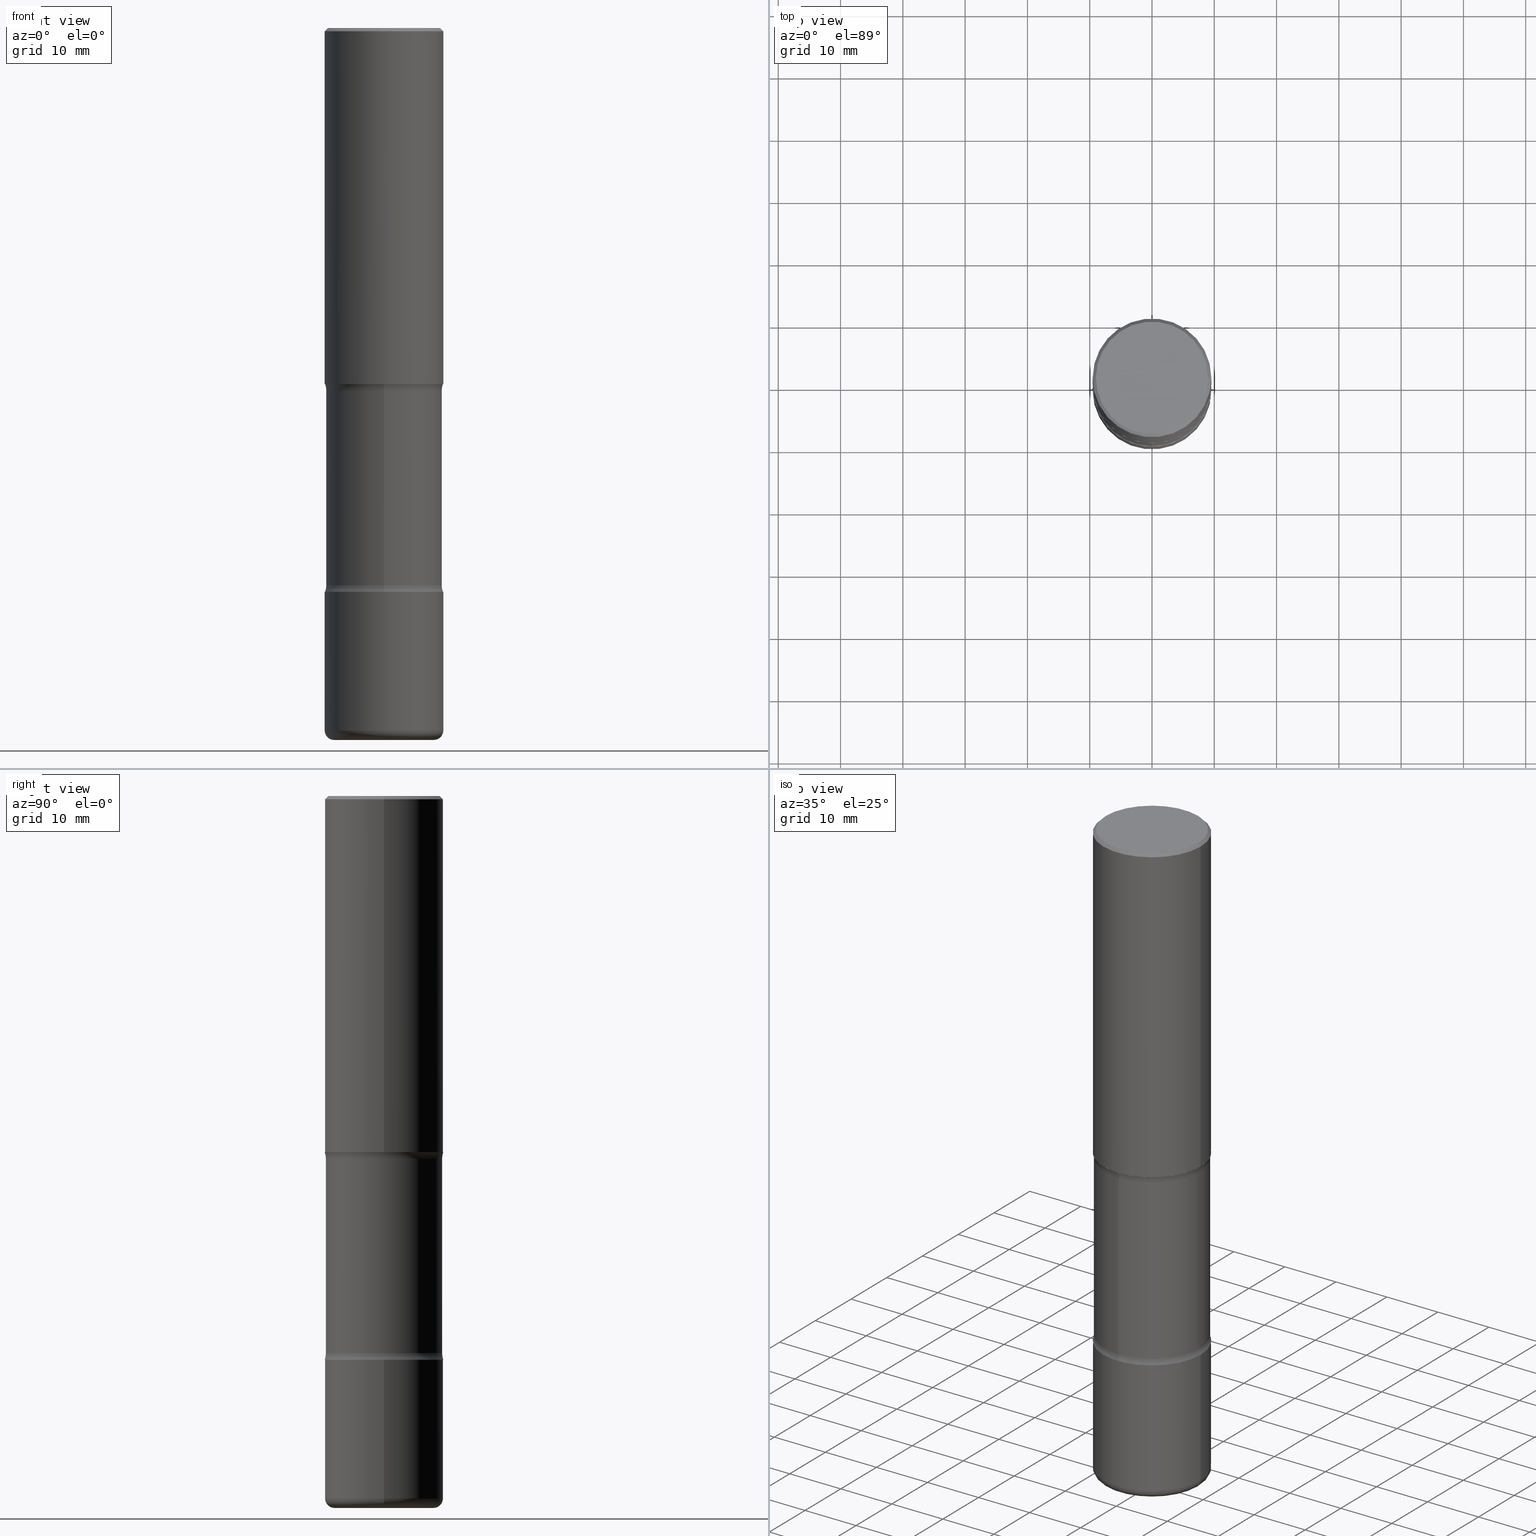
[diagram: canonical four-view strip — front | top / right | iso, engineering-drawing reading convention]
A machine part, canonical four-view strip (front | top / right | iso — engineering-drawing reading convention). The complete STEP part file that produces these views, byte-faithful:
ISO-10303-21;
HEADER;
FILE_DESCRIPTION (( 'STEP AP203' ),
    '1' );
FILE_NAME ('36792.STEP',
    '2024-03-02T00:05:12',
    ( '' ),
    ( '' ),
    'SwSTEP 2.0',
    'SolidWorks 2023',
    '' );
FILE_SCHEMA (( 'CONFIG_CONTROL_DESIGN' ));
ENDSEC;

DATA;
#1 = EDGE_CURVE ( 'NONE', #60, #247, #345, .T. ) ;
#2 = VERTEX_POINT ( 'NONE', #480 ) ;
#3 = CALENDAR_DATE ( 2024, 1, 3 ) ;
#4 = ADVANCED_FACE ( 'NONE', ( #91 ), #187, .T. ) ;
#5 = ORIENTED_EDGE ( 'NONE', *, *, #383, .F. ) ;
#6 = AXIS2_PLACEMENT_3D ( 'NONE', #176, #523, #94 ) ;
#7 = CIRCLE ( 'NONE', #175, 0.3750000000000001665 ) ;
#8 = VERTEX_POINT ( 'NONE', #444 ) ;
#9 = EDGE_LOOP ( 'NONE', ( #225, #125, #202, #95 ) ) ;
#10 = FACE_OUTER_BOUND ( 'NONE', #171, .T. ) ;
#11 = UNCERTAINTY_MEASURE_WITH_UNIT (LENGTH_MEASURE( 1.000000000000000082E-05 ), #245, 'distance_accuracy_value', 'NONE');
#12 = CC_DESIGN_PERSON_AND_ORGANIZATION_ASSIGNMENT ( #300, #256, ( #152 ) ) ;
#13 = CARTESIAN_POINT ( 'NONE',  ( 0.000000000000000000, 0.000000000000000000, 0.000000000000000000 ) ) ;
#14 = CIRCLE ( 'NONE', #44, 0.3550000000000002598 ) ;
#15 = VECTOR ( 'NONE', #178, 39.37007874015748143 ) ;
#16 = DIRECTION ( 'NONE',  ( -6.982962677686269077E-15, -1.000000000000000000, 0.000000000000000000 ) ) ;
#17 = DIRECTION ( 'NONE',  ( 1.000000000000000000, -6.982962677686265922E-15, 0.000000000000000000 ) ) ;
#18 = VECTOR ( 'NONE', #451, 39.37007874015748143 ) ;
#19 = AXIS2_PLACEMENT_3D ( 'NONE', #548, #464, #167 ) ;
#20 =( NAMED_UNIT ( * ) SI_UNIT ( $, .STERADIAN. ) SOLID_ANGLE_UNIT ( ) );
#21 = APPLICATION_PROTOCOL_DEFINITION ( 'international standard', 'config_control_design', 1994, #311 ) ;
#22 = CARTESIAN_POINT ( 'NONE',  ( -0.3550000000000002598, 2.513866563967057436E-15, 4.268512490082953109E-18 ) ) ;
#23 = DIRECTION ( 'NONE',  ( 6.982962677686265922E-15, 1.000000000000000000, -2.973439993103959853E-15 ) ) ;
#24 = VERTEX_POINT ( 'NONE', #240 ) ;
#25 = CIRCLE ( 'NONE', #110, 0.1250000000000000278 ) ;
#26 = CC_DESIGN_SECURITY_CLASSIFICATION ( #490, ( #152 ) ) ;
#27 = ORIENTED_EDGE ( 'NONE', *, *, #458, .F. ) ;
#28 = CARTESIAN_POINT ( 'NONE',  ( 5.502304813916557343E-29, -7.855833012397078448E-15, -2.250000000000000000 ) ) ;
#29 = ORIENTED_EDGE ( 'NONE', *, *, #53, .T. ) ;
#30 = CC_DESIGN_PERSON_AND_ORGANIZATION_ASSIGNMENT ( #473, #170, ( #490 ) ) ;
#31 = COORDINATED_UNIVERSAL_TIME_OFFSET ( 5, 0, .BEHIND. ) ;
#32 = ORIENTED_EDGE ( 'NONE', *, *, #212, .T. ) ;
#33 = ADVANCED_FACE ( 'NONE', ( #365 ), #493, .F. ) ;
#34 = CALENDAR_DATE ( 2024, 1, 3 ) ;
#35 = CONICAL_SURFACE ( 'NONE', #223, 0.3750000000000003886, 0.7853981633974479459 ) ;
#36 = DIRECTION ( 'NONE',  ( -1.000000000000000000, 6.982962677686265922E-15, -4.876176775795935793E-29 ) ) ;
#37 = EDGE_LOOP ( 'NONE', ( #352, #514, #32, #373 ) ) ;
#38 = APPROVAL_STATUS ( 'not_yet_approved' ) ;
#39 = EDGE_CURVE ( 'NONE', #330, #83, #505, .T. ) ;
#40 = FACE_OUTER_BOUND ( 'NONE', #112, .T. ) ;
#41 = VERTEX_POINT ( 'NONE', #185 ) ;
#42 = CARTESIAN_POINT ( 'NONE',  ( -2.572686749164238350E-15, -0.3750000000000126565, -3.562999999999999279 ) ) ;
#43 = EDGE_LOOP ( 'NONE', ( #252, #508 ) ) ;
#44 = AXIS2_PLACEMENT_3D ( 'NONE', #447, #321, #106 ) ;
#45 = FACE_OUTER_BOUND ( 'NONE', #381, .T. ) ;
#46 = EDGE_CURVE ( 'NONE', #302, #41, #448, .T. ) ;
#47 = ORIENTED_EDGE ( 'NONE', *, *, #196, .F. ) ;
#48 = DIRECTION ( 'NONE',  ( 1.000000000000000000, -6.982962677686265922E-15, 0.000000000000000000 ) ) ;
#49 = DIRECTION ( 'NONE',  ( 1.000000000000000000, -6.982962677686265922E-15, 4.883557194083113462E-29 ) ) ;
#50 = ORIENTED_EDGE ( 'NONE', *, *, #532, .F. ) ;
#51 = APPROVAL ( #387, 'UNSPECIFIED' ) ;
#52 = LINE ( 'NONE', #533, #328 ) ;
#53 = EDGE_CURVE ( 'NONE', #521, #206, #355, .T. ) ;
#54 = DIRECTION ( 'NONE',  ( 2.445468806185136597E-29, -3.491481338843145583E-15, -1.000000000000000000 ) ) ;
#55 = CLOSED_SHELL ( 'NONE', ( #220, #482, #417, #153, #432, #446 ) ) ;
#56 = DIRECTION ( 'NONE',  ( 2.496366331747755751E-29, -3.418593185330225082E-15, -1.000000000000000000 ) ) ;
#57 = CIRCLE ( 'NONE', #393, 0.3750000000000003886 ) ;
#58 = DIRECTION ( 'NONE',  ( 6.982962677686266711E-15, 1.000000000000000000, -3.642463991552346225E-15 ) ) ;
#59 = CARTESIAN_POINT ( 'NONE',  ( 1.085788149946200541E-28, -1.550217714446356700E-14, -4.440000000000000391 ) ) ;
#60 = VERTEX_POINT ( 'NONE', #412 ) ;
#61 = MANIFOLD_SOLID_BREP ( 'Body-Move/Copy2[1]', #181 ) ;
#62 = CARTESIAN_POINT ( 'NONE',  ( 8.713205356437641927E-29, -1.244014801029812826E-14, -3.563000000000000167 ) ) ;
#63 = ADVANCED_BREP_SHAPE_REPRESENTATION ( '36792', ( #61, #427, #435, #356 ), #537 ) ;
#64 = CARTESIAN_POINT ( 'NONE',  ( 5.502304813916557343E-29, -7.855833012397078448E-15, -2.250000000000000000 ) ) ;
#65 = LINE ( 'NONE', #360, #436 ) ;
#66 = FACE_OUTER_BOUND ( 'NONE', #398, .T. ) ;
#67 = CYLINDRICAL_SURFACE ( 'NONE', #269, 0.3750000000000001110 ) ;
#68 = AXIS2_PLACEMENT_3D ( 'NONE', #305, #388, #341 ) ;
#69 = CIRCLE ( 'NONE', #519, 0.3750000000000004996 ) ;
#70 = DESIGN_CONTEXT ( 'detailed design', #107, 'design' ) ;
#71 =( NAMED_UNIT ( * ) PLANE_ANGLE_UNIT ( ) SI_UNIT ( $, .RADIAN. ) );
#72 = CARTESIAN_POINT ( 'NONE',  ( 8.713205356437641927E-29, -1.244014801029812826E-14, -3.563000000000000167 ) ) ;
#73 = EDGE_CURVE ( 'NONE', #336, #247, #65, .T. ) ;
#74 = ORIENTED_EDGE ( 'NONE', *, *, #46, .T. ) ;
#75 = DIRECTION ( 'NONE',  ( 0.7071067811865472397, -7.319954787623254468E-15, -0.7071067811865477948 ) ) ;
#76 = VERTEX_POINT ( 'NONE', #172 ) ;
#77 = AXIS2_PLACEMENT_3D ( 'NONE', #486, #137, #475 ) ;
#78 = CIRCLE ( 'NONE', #136, 0.3674999999999998823 ) ;
#79 = APPLICATION_PROTOCOL_DEFINITION ( 'international standard', 'config_control_design', 1994, #107 ) ;
#80 = EDGE_CURVE ( 'NONE', #271, #521, #301, .T. ) ;
#81 = CALENDAR_DATE ( 2024, 1, 3 ) ;
#82 = COORDINATED_UNIVERSAL_TIME_OFFSET ( 5, 0, .BEHIND. ) ;
#83 = VERTEX_POINT ( 'NONE', #346 ) ;
#84 = CIRCLE ( 'NONE', #268, 0.3750000000000001665 ) ;
#85 = CC_DESIGN_DATE_AND_TIME_ASSIGNMENT ( #378, #139, ( #184 ) ) ;
#86 = AXIS2_PLACEMENT_3D ( 'NONE', #331, #285, #327 ) ;
#87 = LOCAL_TIME ( 19, 5, 12.00000000000000000, #82 ) ;
#88 = DIRECTION ( 'NONE',  ( -1.000000000000000000, 7.105427357601009747E-15, 0.000000000000000000 ) ) ;
#89 = ORIENTED_EDGE ( 'NONE', *, *, #53, .F. ) ;
#90 = FACE_OUTER_BOUND ( 'NONE', #516, .T. ) ;
#91 = FACE_OUTER_BOUND ( 'NONE', #290, .T. ) ;
#92 = PERSON_AND_ORGANIZATION ( #299, #119 ) ;
#93 = ADVANCED_FACE ( 'NONE', ( #132 ), #262, .F. ) ;
#94 = DIRECTION ( 'NONE',  ( 1.000000000000000000, -6.982962677686260400E-15, 0.000000000000000000 ) ) ;
#95 = ORIENTED_EDGE ( 'NONE', *, *, #157, .F. ) ;
#96 = AXIS2_PLACEMENT_3D ( 'NONE', #494, #401, #312 ) ;
#97 = CARTESIAN_POINT ( 'NONE',  ( 8.606743307597319638E-29, -1.229435593241547198E-14, -3.520353194726919543 ) ) ;
#98 = AXIS2_PLACEMENT_3D ( 'NONE', #495, #108, #58 ) ;
#99 = CARTESIAN_POINT ( 'NONE',  ( 2.566238784049757369E-15, 0.3674999999999917777, -2.292646805273081956 ) ) ;
#100 = CC_DESIGN_DATE_AND_TIME_ASSIGNMENT ( #557, #481, ( #490 ) ) ;
#101 = ORIENTED_EDGE ( 'NONE', *, *, #142, .T. ) ;
#102 = CARTESIAN_POINT ( 'NONE',  ( 4.890937612370306439E-31, -6.982962677686338448E-17, -0.02000000000000013572 ) ) ;
#103 = DIRECTION ( 'NONE',  ( 1.000000000000000000, -6.982962677686265922E-15, 0.000000000000000000 ) ) ;
#104 = EDGE_CURVE ( 'NONE', #41, #295, #276, .T. ) ;
#105 = CARTESIAN_POINT ( 'NONE',  ( 1.100460962783311469E-28, -1.571166602479415690E-14, -4.500000000000000000 ) ) ;
#106 = DIRECTION ( 'NONE',  ( 1.000000000000000000, -6.982962677686265922E-15, 4.876231632511984259E-29 ) ) ;
#107 = APPLICATION_CONTEXT ( 'configuration controlled 3d designs of mechanical parts and assemblies' ) ;
#108 = DIRECTION ( 'NONE',  ( 2.496366331747755751E-29, -3.418593185330225082E-15, -1.000000000000000000 ) ) ;
#109 = CARTESIAN_POINT ( 'NONE',  ( -0.3750000000000003886, 2.548781377355489085E-15, -0.02000000000000013572 ) ) ;
#110 = AXIS2_PLACEMENT_3D ( 'NONE', #143, #479, #257 ) ;
#111 = AXIS2_PLACEMENT_3D ( 'NONE', #450, #499, #226 ) ;
#112 = EDGE_LOOP ( 'NONE', ( #255, #47 ) ) ;
#113 = DIRECTION ( 'NONE',  ( 2.496366331747755751E-29, -3.418593185330225082E-15, -1.000000000000000000 ) ) ;
#114 = DIRECTION ( 'NONE',  ( 2.496366331747755751E-29, -3.418593185330225082E-15, -1.000000000000000000 ) ) ;
#115 = DIRECTION ( 'NONE',  ( -6.982962677686265922E-15, -1.000000000000000000, 3.418593185330225082E-15 ) ) ;
#116 = DIRECTION ( 'NONE',  ( 6.982962677686265922E-15, 1.000000000000000000, -3.418593185330225082E-15 ) ) ;
#117 = DIRECTION ( 'NONE',  ( -1.000000000000000000, 6.982962677686265922E-15, -4.876176775795935793E-29 ) ) ;
#118 = AXIS2_PLACEMENT_3D ( 'NONE', #324, #236, #17 ) ;
#119 = ORGANIZATION ( 'UNSPECIFIED', 'UNSPECIFIED', '' ) ;
#120 = EDGE_CURVE ( 'NONE', #271, #553, #25, .T. ) ;
#121 = CARTESIAN_POINT ( 'NONE',  ( -2.546959881672627592E-15, -0.3675000000000080425, -2.292646805273079291 ) ) ;
#122 = ADVANCED_FACE ( 'NONE', ( #40 ), #424, .T. ) ;
#123 = ORIENTED_EDGE ( 'NONE', *, *, #539, .T. ) ;
#124 = DIRECTION ( 'NONE',  ( -2.445468806185136597E-29, 3.491481338843145583E-15, 1.000000000000000000 ) ) ;
#125 = ORIENTED_EDGE ( 'NONE', *, *, #383, .T. ) ;
#126 = CARTESIAN_POINT ( 'NONE',  ( 4.890937612370306439E-31, -6.982962677686338448E-17, -0.02000000000000013572 ) ) ;
#127 = EDGE_LOOP ( 'NONE', ( #465, #419, #309, #377 ) ) ;
#128 = AXIS2_PLACEMENT_3D ( 'NONE', #147, #189, #364 ) ;
#129 = APPROVAL_DATE_TIME ( #131, #463 ) ;
#130 = EDGE_LOOP ( 'NONE', ( #524, #549, #489, #179 ) ) ;
#131 = DATE_AND_TIME ( #3, #87 ) ;
#132 = FACE_OUTER_BOUND ( 'NONE', #511, .T. ) ;
#133 = ADVANCED_FACE ( 'NONE', ( #90 ), #384, .T. ) ;
#134 = ORIENTED_EDGE ( 'NONE', *, *, #438, .T. ) ;
#135 = VERTEX_POINT ( 'NONE', #42 ) ;
#136 = AXIS2_PLACEMENT_3D ( 'NONE', #154, #415, #541 ) ;
#137 = DIRECTION ( 'NONE',  ( 2.496366331747755751E-29, -3.418593185330225082E-15, -1.000000000000000000 ) ) ;
#138 = DIRECTION ( 'NONE',  ( -2.445468806185136877E-29, 3.491481338843145188E-15, 1.000000000000000000 ) ) ;
#139 = DATE_TIME_ROLE ( 'creation_date' ) ;
#140 = ORIENTED_EDGE ( 'NONE', *, *, #104, .F. ) ;
#141 = DIRECTION ( 'NONE',  ( 1.000000000000000000, -6.982962677686266711E-15, 4.876176775795935793E-29 ) ) ;
#142 = EDGE_CURVE ( 'NONE', #173, #295, #366, .T. ) ;
#143 = CARTESIAN_POINT ( 'NONE',  ( 3.439109118760541102E-15, 0.4924999999999918887, -2.292646805273082400 ) ) ;
#144 = EDGE_LOOP ( 'NONE', ( #177, #221 ) ) ;
#145 = CIRCLE ( 'NONE', #98, 0.3750000000000004996 ) ;
#146 = ADVANCED_FACE ( 'NONE', ( #483 ), #536, .T. ) ;
#147 = CARTESIAN_POINT ( 'NONE',  ( 5.558905264443154202E-29, -8.073029737010921823E-15, -2.292646805273080624 ) ) ;
#148 = FACE_OUTER_BOUND ( 'NONE', #169, .T. ) ;
#149 = CARTESIAN_POINT ( 'NONE',  ( 5.435476362852835886E-29, -7.951535157959538606E-15, -2.249999999999999112 ) ) ;
#150 = CIRCLE ( 'NONE', #201, 0.3750000000000005551 ) ;
#151 = DIRECTION ( 'NONE',  ( 2.496366331747755470E-29, -3.418593185330225082E-15, -1.000000000000000000 ) ) ;
#152 = PRODUCT_DEFINITION_FORMATION_WITH_SPECIFIED_SOURCE ( 'ANY', '', #219, .NOT_KNOWN. ) ;
#153 = ADVANCED_FACE ( 'NONE', ( #45 ), #227, .F. ) ;
#154 = CARTESIAN_POINT ( 'NONE',  ( 5.541938411693159296E-29, -8.097327235842201196E-15, -2.292646805273080624 ) ) ;
#155 = DIRECTION ( 'NONE',  ( 6.982962677686265922E-15, 1.000000000000000000, -3.418593185330225082E-15 ) ) ;
#156 = CARTESIAN_POINT ( 'NONE',  ( -0.3750000000000001110, -1.283764188536319288E-14, -4.440000000000000391 ) ) ;
#157 = EDGE_CURVE ( 'NONE', #271, #330, #52, .T. ) ;
#158 = CARTESIAN_POINT ( 'NONE',  ( 0.3550000000000002598, -2.538996582575043020E-15, 4.268512490117958041E-18 ) ) ;
#159 = EDGE_CURVE ( 'NONE', #461, #336, #14, .T. ) ;
#160 = LOCAL_TIME ( 19, 5, 12.00000000000000000, #31 ) ;
#161 = ORIENTED_EDGE ( 'NONE', *, *, #308, .T. ) ;
#162 = CC_DESIGN_APPROVAL ( #51, ( #490 ) ) ;
#163 = FACE_OUTER_BOUND ( 'NONE', #130, .T. ) ;
#164 = ORIENTED_EDGE ( 'NONE', *, *, #120, .F. ) ;
#165 = DIRECTION ( 'NONE',  ( -2.445468806185136597E-29, 3.491481338843145583E-15, 1.000000000000000000 ) ) ;
#166 = ORIENTED_EDGE ( 'NONE', *, *, #501, .T. ) ;
#167 = DIRECTION ( 'NONE',  ( 6.860497997771532351E-15, 1.000000000000000000, 0.000000000000000000 ) ) ;
#168 = AXIS2_PLACEMENT_3D ( 'NONE', #500, #56, #540 ) ;
#169 = EDGE_LOOP ( 'NONE', ( #140, #498, #339, #291 ) ) ;
#170 = PERSON_AND_ORGANIZATION_ROLE ( 'classification_officer' ) ;
#171 = EDGE_LOOP ( 'NONE', ( #349, #394, #431, #213 ) ) ;
#172 = CARTESIAN_POINT ( 'NONE',  ( 2.618611004132437974E-15, 0.3749999999999877320, -3.563000000000001499 ) ) ;
#173 = VERTEX_POINT ( 'NONE', #239 ) ;
#174 = AXIS2_PLACEMENT_3D ( 'NONE', #218, #297, #36 ) ;
#175 = AXIS2_PLACEMENT_3D ( 'NONE', #62, #525, #188 ) ;
#176 = CARTESIAN_POINT ( 'NONE',  ( 1.085788149946200766E-28, -1.550217714446357016E-14, -4.440000000000000391 ) ) ;
#177 = ORIENTED_EDGE ( 'NONE', *, *, #308, .F. ) ;
#178 = DIRECTION ( 'NONE',  ( 2.496366331747755751E-29, -3.418593185330225082E-15, -1.000000000000000000 ) ) ;
#179 = ORIENTED_EDGE ( 'NONE', *, *, #73, .F. ) ;
#180 = CARTESIAN_POINT ( 'NONE',  ( 5.558905264443154202E-29, -8.073029737010921823E-15, -2.292646805273080624 ) ) ;
#181 = CLOSED_SHELL ( 'NONE', ( #333, #146, #122, #215, #4, #275 ) ) ;
#182 = CIRCLE ( 'NONE', #413, 0.3750000000000001665 ) ;
#183 = FACE_OUTER_BOUND ( 'NONE', #237, .T. ) ;
#184 = PRODUCT_DEFINITION ( 'UNKNOWN', '', #152, #70 ) ;
#185 = CARTESIAN_POINT ( 'NONE',  ( -0.3150000000000001132, -1.315554914625651650E-14, -4.500000000000000000 ) ) ;
#186 = CARTESIAN_POINT ( 'NONE',  ( 4.890937612370306439E-31, -6.982962677686338448E-17, -0.02000000000000013572 ) ) ;
#187 = CYLINDRICAL_SURFACE ( 'NONE', #421, 0.3750000000000001110 ) ;
#188 = DIRECTION ( 'NONE',  ( 1.000000000000000000, -6.982962677686264344E-15, 0.000000000000000000 ) ) ;
#189 = DIRECTION ( 'NONE',  ( 2.496366331747755751E-29, -3.418593185330225082E-15, -1.000000000000000000 ) ) ;
#190 = PERSON_AND_ORGANIZATION ( #299, #119 ) ;
#191 = AXIS2_PLACEMENT_3D ( 'NONE', #359, #353, #496 ) ;
#192 = CARTESIAN_POINT ( 'NONE',  ( 0.3750000000000004996, -2.618611004132353566E-15, 1.828566290923478445E-29 ) ) ;
#193 = AXIS2_PLACEMENT_3D ( 'NONE', #418, #551, #117 ) ;
#194 = DIRECTION ( 'NONE',  ( -0.7071067811865472397, 2.468850131082253905E-15, -0.7071067811865477948 ) ) ;
#195 = CARTESIAN_POINT ( 'NONE',  ( 8.713205356437641927E-29, -1.244014801029812826E-14, -3.563000000000000167 ) ) ;
#196 = EDGE_CURVE ( 'NONE', #41, #302, #512, .T. ) ;
#197 = EDGE_CURVE ( 'NONE', #470, #8, #84, .T. ) ;
#198 = APPROVAL_STATUS ( 'not_yet_approved' ) ;
#199 = CARTESIAN_POINT ( 'NONE',  ( 0.000000000000000000, 0.000000000000000000, 0.000000000000000000 ) ) ;
#200 = AXIS2_PLACEMENT_3D ( 'NONE', #105, #534, #280 ) ;
#201 = AXIS2_PLACEMENT_3D ( 'NONE', #64, #492, #103 ) ;
#202 = ORIENTED_EDGE ( 'NONE', *, *, #39, .F. ) ;
#203 = CARTESIAN_POINT ( 'NONE',  ( 1.105230060928528948E-28, -1.564336982495255007E-14, -4.500000000000000000 ) ) ;
#204 = ORIENTED_EDGE ( 'NONE', *, *, #532, .T. ) ;
#205 = DIRECTION ( 'NONE',  ( -2.445468806185136877E-29, 3.491481338843145188E-15, 1.000000000000000000 ) ) ;
#206 = VERTEX_POINT ( 'NONE', #531 ) ;
#207 = PERSON_AND_ORGANIZATION_ROLE ( 'creator' ) ;
#208 = CIRCLE ( 'NONE', #168, 0.3750000000000001665 ) ;
#209 = EDGE_LOOP ( 'NONE', ( #74, #484, #439, #263 ) ) ;
#210 = AXIS2_PLACEMENT_3D ( 'NONE', #72, #507, #115 ) ;
#211 = SHAPE_DEFINITION_REPRESENTATION ( #385, #63 ) ;
#212 = EDGE_CURVE ( 'NONE', #24, #2, #369, .T. ) ;
#213 = ORIENTED_EDGE ( 'NONE', *, *, #39, .T. ) ;
#214 = SECURITY_CLASSIFICATION_LEVEL ( 'unclassified' ) ;
#215 = ADVANCED_FACE ( 'NONE', ( #148 ), #337, .T. ) ;
#216 = CARTESIAN_POINT ( 'NONE',  ( 1.105230060928528948E-28, -1.564336982495255007E-14, -4.500000000000000000 ) ) ;
#217 = ORIENTED_EDGE ( 'NONE', *, *, #120, .T. ) ;
#218 = CARTESIAN_POINT ( 'NONE',  ( 1.100460962783311469E-28, -1.571166602479415690E-14, -4.500000000000000000 ) ) ;
#219 = PRODUCT ( '36792', '36792', '', ( #543 ) ) ;
#220 = ADVANCED_FACE ( 'NONE', ( #527 ), #274, .T. ) ;
#221 = ORIENTED_EDGE ( 'NONE', *, *, #266, .F. ) ;
#222 = AXIS2_PLACEMENT_3D ( 'NONE', #354, #114, #530 ) ;
#223 = AXIS2_PLACEMENT_3D ( 'NONE', #126, #323, #292 ) ;
#224 = APPROVAL_PERSON_ORGANIZATION ( #390, #51, #478 ) ;
#225 = ORIENTED_EDGE ( 'NONE', *, *, #80, .T. ) ;
#226 = DIRECTION ( 'NONE',  ( 1.000000000000000000, -6.982962677686265922E-15, 4.876176775795935793E-29 ) ) ;
#227 = PLANE ( 'NONE',  #191 ) ;
#228 = ORIENTED_EDGE ( 'NONE', *, *, #197, .F. ) ;
#229 = CARTESIAN_POINT ( 'NONE',  ( 0.3150000000000002798, -1.770181038793474354E-14, -4.440000000000000391 ) ) ;
#230 = CARTESIAN_POINT ( 'NONE',  ( 8.713205356437641927E-29, -1.244014801029812826E-14, -3.563000000000000167 ) ) ;
#231 = DIRECTION ( 'NONE',  ( 6.860497997771532351E-15, 1.000000000000000000, 0.000000000000000000 ) ) ;
#232 = CIRCLE ( 'NONE', #348, 0.05999999999999983818 ) ;
#233 = CARTESIAN_POINT ( 'NONE',  ( 3.439109118760571867E-15, 0.4924999999999877254, -3.520353194726921320 ) ) ;
#234 = LINE ( 'NONE', #491, #15 ) ;
#235 = EDGE_CURVE ( 'NONE', #135, #76, #208, .T. ) ;
#236 = DIRECTION ( 'NONE',  ( -2.445468806185136597E-29, 3.491481338843145583E-15, 1.000000000000000000 ) ) ;
#237 = EDGE_LOOP ( 'NONE', ( #50, #29, #267, #164 ) ) ;
#238 = FACE_OUTER_BOUND ( 'NONE', #37, .T. ) ;
#239 = CARTESIAN_POINT ( 'NONE',  ( 0.3750000000000001110, -1.812078814859591702E-14, -4.440000000000000391 ) ) ;
#240 = CARTESIAN_POINT ( 'NONE',  ( 0.3750000000000005551, -1.047444401652943162E-14, -2.250000000000000000 ) ) ;
#241 = DIRECTION ( 'NONE',  ( 2.496366331747755751E-29, -3.418593185330225082E-15, -1.000000000000000000 ) ) ;
#242 = CARTESIAN_POINT ( 'NONE',  ( 1.008063903332526788E-28, -1.299397827602851852E-15, -2.249999999999999556 ) ) ;
#243 = EDGE_CURVE ( 'NONE', #76, #330, #487, .T. ) ;
#244 = DIRECTION ( 'NONE',  ( 1.000000000000000000, 0.000000000000000000, 0.000000000000000000 ) ) ;
#245 =( CONVERSION_BASED_UNIT ( 'INCH', #289 ) LENGTH_UNIT ( ) NAMED_UNIT ( #258 ) );
#246 = ADVANCED_FACE ( 'NONE', ( #10 ), #454, .F. ) ;
#247 = VERTEX_POINT ( 'NONE', #109 ) ;
#248 = DIRECTION ( 'NONE',  ( 1.000000000000000000, -6.982962677686265922E-15, 4.876231632511984259E-29 ) ) ;
#249 = CYLINDRICAL_SURFACE ( 'NONE', #303, 0.3674999999999999933 ) ;
#250 = AXIS2_PLACEMENT_3D ( 'NONE', #216, #391, #433 ) ;
#251 = AXIS2_PLACEMENT_3D ( 'NONE', #97, #241, #23 ) ;
#252 = ORIENTED_EDGE ( 'NONE', *, *, #441, .T. ) ;
#253 = CARTESIAN_POINT ( 'NONE',  ( 0.3150000000000001132, -1.791129926826533028E-14, -4.500000000000000000 ) ) ;
#254 = ADVANCED_FACE ( 'NONE', ( #279 ), #310, .F. ) ;
#255 = ORIENTED_EDGE ( 'NONE', *, *, #46, .F. ) ;
#256 = PERSON_AND_ORGANIZATION_ROLE ( 'design_supplier' ) ;
#257 = DIRECTION ( 'NONE',  ( -6.982962677686265133E-15, -1.000000000000000000, 0.000000000000000000 ) ) ;
#258 = DIMENSIONAL_EXPONENTS ( 1.000000000000000000, 0.000000000000000000, 0.000000000000000000, 0.000000000000000000, 0.000000000000000000, 0.000000000000000000, 0.000000000000000000 ) ;
#259 = ORIENTED_EDGE ( 'NONE', *, *, #235, .T. ) ;
#260 = ADVANCED_FACE ( 'NONE', ( #183 ), #449, .F. ) ;
#261 = CALENDAR_DATE ( 2024, 1, 3 ) ;
#262 = TOROIDAL_SURFACE ( 'NONE', #77, 0.4924999999999999933, 0.1250000000000000555 ) ;
#263 = ORIENTED_EDGE ( 'NONE', *, *, #399, .F. ) ;
#264 = CC_DESIGN_APPROVAL ( #559, ( #184 ) ) ;
#265 = ORIENTED_EDGE ( 'NONE', *, *, #340, .F. ) ;
#266 = EDGE_CURVE ( 'NONE', #60, #24, #150, .T. ) ;
#267 = ORIENTED_EDGE ( 'NONE', *, *, #273, .T. ) ;
#268 = AXIS2_PLACEMENT_3D ( 'NONE', #230, #397, #407 ) ;
#269 = AXIS2_PLACEMENT_3D ( 'NONE', #199, #457, #332 ) ;
#270 = DIRECTION ( 'NONE',  ( 2.496366331747755751E-29, -3.418593185330225082E-15, -1.000000000000000000 ) ) ;
#271 = VERTEX_POINT ( 'NONE', #99 ) ;
#272 = CARTESIAN_POINT ( 'NONE',  ( 8.608913924458871397E-29, -1.229124748552589013E-14, -3.520353194726919543 ) ) ;
#273 = EDGE_CURVE ( 'NONE', #206, #553, #69, .T. ) ;
#274 = CYLINDRICAL_SURFACE ( 'NONE', #402, 0.3750000000000004996 ) ;
#275 = ADVANCED_FACE ( 'NONE', ( #443 ), #542, .F. ) ;
#276 = CIRCLE ( 'NONE', #528, 0.05999999999999983818 ) ;
#277 = FACE_OUTER_BOUND ( 'NONE', #127, .T. ) ;
#278 = CIRCLE ( 'NONE', #367, 0.3750000000000005551 ) ;
#279 = FACE_OUTER_BOUND ( 'NONE', #429, .T. ) ;
#280 = DIRECTION ( 'NONE',  ( 1.000000000000000000, -6.982962677686265922E-15, 0.000000000000000000 ) ) ;
#281 = ORIENTED_EDGE ( 'NONE', *, *, #340, .T. ) ;
#282 = DIRECTION ( 'NONE',  ( 1.000000000000000000, -6.982962677686287221E-15, 0.000000000000000000 ) ) ;
#283 = DIRECTION ( 'NONE',  ( 6.982962677686265922E-15, 1.000000000000000000, -3.418593185330225082E-15 ) ) ;
#284 = DIRECTION ( 'NONE',  ( 1.000000000000000000, -6.982962677686265922E-15, 4.876176775795935793E-29 ) ) ;
#285 = DIRECTION ( 'NONE',  ( -2.445468806185136597E-29, 3.491481338843145583E-15, 1.000000000000000000 ) ) ;
#286 = AXIS2_PLACEMENT_3D ( 'NONE', #242, #151, #116 ) ;
#287 = CARTESIAN_POINT ( 'NONE',  ( 2.566238784049788529E-15, 0.3674999999999876699, -3.520353194726920876 ) ) ;
#288 = AXIS2_PLACEMENT_3D ( 'NONE', #334, #456, #248 ) ;
#289 = LENGTH_MEASURE_WITH_UNIT ( LENGTH_MEASURE( 0.02539999999999999897 ), #459 );
#290 = EDGE_LOOP ( 'NONE', ( #265, #166, #556, #228 ) ) ;
#291 = ORIENTED_EDGE ( 'NONE', *, *, #501, .F. ) ;
#292 = DIRECTION ( 'NONE',  ( -1.000000000000000000, 6.982962677686265922E-15, 0.000000000000000000 ) ) ;
#293 = AXIS2_PLACEMENT_3D ( 'NONE', #59, #411, #49 ) ;
#294 = CALENDAR_DATE ( 2024, 1, 3 ) ;
#295 = VERTEX_POINT ( 'NONE', #156 ) ;
#296 = PERSON_AND_ORGANIZATION ( #299, #119 ) ;
#297 = DIRECTION ( 'NONE',  ( 2.438088387897960049E-29, -3.491481338843145188E-15, -1.000000000000000000 ) ) ;
#298 = ORIENTED_EDGE ( 'NONE', *, *, #392, .F. ) ;
#299 = PERSON ( 'UNSPECIFIED', 'UNSPECIFIED', 'UNSPECIFIED', ('UNSPECIFIED'), ('UNSPECIFIED'), ('UNSPECIFIED') ) ;
#300 = PERSON_AND_ORGANIZATION ( #299, #119 ) ;
#301 = CIRCLE ( 'NONE', #68, 0.3674999999999998823 ) ;
#302 = VERTEX_POINT ( 'NONE', #253 ) ;
#303 = AXIS2_PLACEMENT_3D ( 'NONE', #203, #406, #358 ) ;
#304 = LOCAL_TIME ( 19, 5, 12.00000000000000000, #343 ) ;
#305 = CARTESIAN_POINT ( 'NONE',  ( 5.541938411693159296E-29, -8.097327235842201196E-15, -2.292646805273080624 ) ) ;
#306 = EDGE_LOOP ( 'NONE', ( #342, #526 ) ) ;
#307 = ORIENTED_EDGE ( 'NONE', *, *, #458, .T. ) ;
#308 = EDGE_CURVE ( 'NONE', #24, #60, #278, .T. ) ;
#309 = ORIENTED_EDGE ( 'NONE', *, *, #73, .T. ) ;
#310 = TOROIDAL_SURFACE ( 'NONE', #128, 0.4924999999999999378, 0.1250000000000000278 ) ;
#311 = APPLICATION_CONTEXT ( 'configuration controlled 3d designs of mechanical parts and assemblies' ) ;
#312 = DIRECTION ( 'NONE',  ( 1.000000000000000000, -6.982962677686265922E-15, 4.883557194083113462E-29 ) ) ;
#313 = PRODUCT_RELATED_PRODUCT_CATEGORY ( 'detail', '', ( #219 ) ) ;
#314 = DIRECTION ( 'NONE',  ( -2.445468806185136597E-29, 3.491481338843145583E-15, 1.000000000000000000 ) ) ;
#315 = DIRECTION ( 'NONE',  ( 2.496366331747755751E-29, -3.418593185330225082E-15, -1.000000000000000000 ) ) ;
#316 = EDGE_CURVE ( 'NONE', #173, #8, #416, .T. ) ;
#317 = PLANE ( 'NONE',  #111 ) ;
#318 = DIRECTION ( 'NONE',  ( 1.000000000000000000, -6.982962677686266711E-15, 4.876176775795935793E-29 ) ) ;
#319 = ORIENTED_EDGE ( 'NONE', *, *, #235, .F. ) ;
#320 = VECTOR ( 'NONE', #75, 39.37007874015748143 ) ;
#321 = DIRECTION ( 'NONE',  ( -2.445468806185136597E-29, 3.491481338843145583E-15, 1.000000000000000000 ) ) ;
#322 = DIRECTION ( 'NONE',  ( 1.000000000000000000, -6.860497997771530774E-15, 4.841691502063096728E-29 ) ) ;
#323 = DIRECTION ( 'NONE',  ( 2.445468806185136597E-29, -3.491481338843145583E-15, -1.000000000000000000 ) ) ;
#324 = CARTESIAN_POINT ( 'NONE',  ( 1.100460962783311469E-28, -1.571166602479415690E-14, -4.500000000000000000 ) ) ;
#325 = LINE ( 'NONE', #550, #320 ) ;
#326 = DIRECTION ( 'NONE',  ( 1.000000000000000000, -6.982962677686265922E-15, 0.000000000000000000 ) ) ;
#327 = DIRECTION ( 'NONE',  ( 1.000000000000000000, -6.982962677686260400E-15, 0.000000000000000000 ) ) ;
#328 = VECTOR ( 'NONE', #315, 39.37007874015748143 ) ;
#329 = LINE ( 'NONE', #460, #403 ) ;
#330 = VERTEX_POINT ( 'NONE', #287 ) ;
#331 = CARTESIAN_POINT ( 'NONE',  ( 1.085788149946200766E-28, -1.550217714446357016E-14, -4.440000000000000391 ) ) ;
#332 = DIRECTION ( 'NONE',  ( 1.000000000000000000, -6.982962677686265922E-15, 4.876176775795935793E-29 ) ) ;
#333 = ADVANCED_FACE ( 'NONE', ( #335 ), #67, .T. ) ;
#334 = CARTESIAN_POINT ( 'NONE',  ( -1.043851414335219820E-46, 1.490343170380447200E-32, 4.268512490100411279E-18 ) ) ;
#335 = FACE_OUTER_BOUND ( 'NONE', #386, .T. ) ;
#336 = VERTEX_POINT ( 'NONE', #22 ) ;
#337 = TOROIDAL_SURFACE ( 'NONE', #96, 0.3150000000000002798, 0.05999999999999987288 ) ;
#338 = CIRCLE ( 'NONE', #19, 0.1250000000000000278 ) ;
#339 = ORIENTED_EDGE ( 'NONE', *, *, #399, .T. ) ;
#340 = EDGE_CURVE ( 'NONE', #295, #470, #329, .T. ) ;
#341 = DIRECTION ( 'NONE',  ( 6.982962677686266711E-15, 1.000000000000000000, -3.716799991379951197E-15 ) ) ;
#342 = ORIENTED_EDGE ( 'NONE', *, *, #438, .F. ) ;
#343 = COORDINATED_UNIVERSAL_TIME_OFFSET ( 5, 0, .BEHIND. ) ;
#344 = EDGE_CURVE ( 'NONE', #247, #2, #57, .T. ) ;
#345 = LINE ( 'NONE', #477, #545 ) ;
#346 = CARTESIAN_POINT ( 'NONE',  ( -2.546959881672594460E-15, -0.3675000000000122613, -3.520353194726918655 ) ) ;
#347 = ORIENTED_EDGE ( 'NONE', *, *, #316, .F. ) ;
#348 = AXIS2_PLACEMENT_3D ( 'NONE', #229, #445, #282 ) ;
#349 = ORIENTED_EDGE ( 'NONE', *, *, #350, .F. ) ;
#350 = EDGE_CURVE ( 'NONE', #135, #83, #338, .T. ) ;
#351 = DIRECTION ( 'NONE',  ( -2.445468806185136597E-29, 3.491481338843145583E-15, 1.000000000000000000 ) ) ;
#352 = ORIENTED_EDGE ( 'NONE', *, *, #1, .F. ) ;
#353 = DIRECTION ( 'NONE',  ( 2.438088387897960049E-29, -3.491481338843145188E-15, -1.000000000000000000 ) ) ;
#354 = CARTESIAN_POINT ( 'NONE',  ( 8.606743307597319638E-29, -1.229435593241547198E-14, -3.520353194726919543 ) ) ;
#355 = CIRCLE ( 'NONE', #517, 0.1250000000000000278 ) ;
#356 = AXIS2_PLACEMENT_3D ( 'NONE', #368, #547, #244 ) ;
#357 = LOCAL_TIME ( 19, 5, 12.00000000000000000, #468 ) ;
#358 = DIRECTION ( 'NONE',  ( 6.982962677686265922E-15, 1.000000000000000000, -2.973439993103959853E-15 ) ) ;
#359 = CARTESIAN_POINT ( 'NONE',  ( 2.478951750578626181E-15, 0.3550000000000002598, -1.237341619044267413E-15 ) ) ;
#360 = CARTESIAN_POINT ( 'NONE',  ( -0.3750000000000003886, 2.548781377355489085E-15, -0.02000000000000013572 ) ) ;
#361 = FACE_OUTER_BOUND ( 'NONE', #144, .T. ) ;
#362 = DIRECTION ( 'NONE',  ( 2.496366331747755751E-29, -3.418593185330225082E-15, -1.000000000000000000 ) ) ;
#363 = DIRECTION ( 'NONE',  ( -2.445468806185136597E-29, 3.491481338843145583E-15, 1.000000000000000000 ) ) ;
#364 = DIRECTION ( 'NONE',  ( 6.982962677686265922E-15, 1.000000000000000000, -3.418593185330225082E-15 ) ) ;
#365 = FACE_OUTER_BOUND ( 'NONE', #306, .T. ) ;
#366 = CIRCLE ( 'NONE', #6, 0.3750000000000001110 ) ;
#367 = AXIS2_PLACEMENT_3D ( 'NONE', #28, #165, #326 ) ;
#368 = CARTESIAN_POINT ( 'NONE',  ( 0.000000000000000000, 0.000000000000000000, 0.000000000000000000 ) ) ;
#369 = LINE ( 'NONE', #192, #18 ) ;
#370 = APPROVAL_ROLE ( '' ) ;
#371 = DIRECTION ( 'NONE',  ( -2.445468806185136877E-29, 3.491481338843145188E-15, 1.000000000000000000 ) ) ;
#372 = CIRCLE ( 'NONE', #380, 0.3750000000000003886 ) ;
#373 = ORIENTED_EDGE ( 'NONE', *, *, #344, .F. ) ;
#374 = ADVANCED_FACE ( 'NONE', ( #453 ), #249, .T. ) ;
#375 = APPROVAL_DATE_TIME ( #426, #51 ) ;
#376 = CARTESIAN_POINT ( 'NONE',  ( 4.890937612370306439E-31, -6.982962677686338448E-17, -0.02000000000000013572 ) ) ;
#377 = ORIENTED_EDGE ( 'NONE', *, *, #344, .T. ) ;
#378 = DATE_AND_TIME ( #294, #160 ) ;
#379 = AXIS2_PLACEMENT_3D ( 'NONE', #233, #404, #16 ) ;
#380 = AXIS2_PLACEMENT_3D ( 'NONE', #186, #314, #48 ) ;
#381 = EDGE_LOOP ( 'NONE', ( #389, #560 ) ) ;
#382 = PERSON_AND_ORGANIZATION ( #299, #119 ) ;
#383 = EDGE_CURVE ( 'NONE', #521, #83, #234, .T. ) ;
#384 = CYLINDRICAL_SURFACE ( 'NONE', #250, 0.3674999999999999933 ) ;
#385 = PRODUCT_DEFINITION_SHAPE ( 'NONE', 'NONE',  #184 ) ;
#386 = EDGE_LOOP ( 'NONE', ( #101, #281, #434, #347 ) ) ;
#387 = APPROVAL_STATUS ( 'not_yet_approved' ) ;
#388 = DIRECTION ( 'NONE',  ( 2.496366331747755751E-29, -3.418593185330225082E-15, -1.000000000000000000 ) ) ;
#389 = ORIENTED_EDGE ( 'NONE', *, *, #552, .T. ) ;
#390 = PERSON_AND_ORGANIZATION ( #299, #119 ) ;
#391 = DIRECTION ( 'NONE',  ( 2.496366331747755751E-29, -3.418593185330225082E-15, -1.000000000000000000 ) ) ;
#392 = EDGE_CURVE ( 'NONE', #2, #247, #372, .T. ) ;
#393 = AXIS2_PLACEMENT_3D ( 'NONE', #376, #124, #555 ) ;
#394 = ORIENTED_EDGE ( 'NONE', *, *, #539, .F. ) ;
#395 = ORIENTED_EDGE ( 'NONE', *, *, #243, .F. ) ;
#396 = CC_DESIGN_PERSON_AND_ORGANIZATION_ASSIGNMENT ( #462, #503, ( #219 ) ) ;
#397 = DIRECTION ( 'NONE',  ( -2.445468806185136597E-29, 3.491481338843145583E-15, 1.000000000000000000 ) ) ;
#398 = EDGE_LOOP ( 'NONE', ( #123, #259 ) ) ;
#399 = EDGE_CURVE ( 'NONE', #302, #173, #232, .T. ) ;
#400 = DIRECTION ( 'NONE',  ( -1.000000000000000000, 6.982962677686265922E-15, 0.000000000000000000 ) ) ;
#401 = DIRECTION ( 'NONE',  ( -2.445468806185136597E-29, 3.491481338843145583E-15, 1.000000000000000000 ) ) ;
#402 = AXIS2_PLACEMENT_3D ( 'NONE', #13, #535, #318 ) ;
#403 = VECTOR ( 'NONE', #205, 39.37007874015748143 ) ;
#404 = DIRECTION ( 'NONE',  ( -1.000000000000000000, 6.982962677686265922E-15, -4.883557194083112340E-29 ) ) ;
#405 = CC_DESIGN_PERSON_AND_ORGANIZATION_ASSIGNMENT ( #92, #554, ( #184 ) ) ;
#406 = DIRECTION ( 'NONE',  ( 2.496366331747755751E-29, -3.418593185330225082E-15, -1.000000000000000000 ) ) ;
#407 = DIRECTION ( 'NONE',  ( 1.000000000000000000, -6.982962677686264344E-15, 0.000000000000000000 ) ) ;
#408 = CARTESIAN_POINT ( 'NONE',  ( -3.378795263902422386E-15, -0.4925000000000079869, -2.292646805273078847 ) ) ;
#409 = ORIENTED_EDGE ( 'NONE', *, *, #350, .T. ) ;
#410 = CARTESIAN_POINT ( 'NONE',  ( 0.000000000000000000, 0.000000000000000000, 0.000000000000000000 ) ) ;
#411 = DIRECTION ( 'NONE',  ( -2.445468806185136597E-29, 3.491481338843145583E-15, 1.000000000000000000 ) ) ;
#412 = CARTESIAN_POINT ( 'NONE',  ( -0.3750000000000005551, -1.298296060486588865E-15, -2.250000000000000000 ) ) ;
#413 = AXIS2_PLACEMENT_3D ( 'NONE', #195, #452, #466 ) ;
#414 = CARTESIAN_POINT ( 'NONE',  ( 2.618611004132407998E-15, 0.3749999999999925615, -2.250000000000000444 ) ) ;
#415 = DIRECTION ( 'NONE',  ( 2.496366331747755751E-29, -3.418593185330225082E-15, -1.000000000000000000 ) ) ;
#416 = LINE ( 'NONE', #504, #546 ) ;
#417 = ADVANCED_FACE ( 'NONE', ( #277 ), #422, .T. ) ;
#418 = CARTESIAN_POINT ( 'NONE',  ( 8.713205356437641927E-29, -1.244014801029812826E-14, -3.563000000000000167 ) ) ;
#419 = ORIENTED_EDGE ( 'NONE', *, *, #552, .F. ) ;
#420 = CARTESIAN_POINT ( 'NONE',  ( -0.3750000000000001665, -1.130662731828047193E-14, -3.563000000000000167 ) ) ;
#421 = AXIS2_PLACEMENT_3D ( 'NONE', #502, #363, #284 ) ;
#422 = CONICAL_SURFACE ( 'NONE', #476, 0.3750000000000003886, 0.7853981633974479459 ) ;
#423 = ORIENTED_EDGE ( 'NONE', *, *, #1, .T. ) ;
#424 = PLANE ( 'NONE',  #174 ) ;
#425 = ORIENTED_EDGE ( 'NONE', *, *, #80, .F. ) ;
#426 = DATE_AND_TIME ( #261, #357 ) ;
#427 = MANIFOLD_SOLID_BREP ( 'Body-Move/Copy2[2]', #55 ) ;
#428 = CARTESIAN_POINT ( 'NONE',  ( -0.3150000000000002798, -1.326396752681925022E-14, -4.440000000000000391 ) ) ;
#429 = EDGE_LOOP ( 'NONE', ( #89, #425, #217, #134 ) ) ;
#430 = APPROVAL_DATE_TIME ( #471, #559 ) ;
#431 = ORIENTED_EDGE ( 'NONE', *, *, #243, .T. ) ;
#432 = ADVANCED_FACE ( 'NONE', ( #361 ), #317, .F. ) ;
#433 = DIRECTION ( 'NONE',  ( 6.982962677686265922E-15, 1.000000000000000000, -2.973439993103959853E-15 ) ) ;
#434 = ORIENTED_EDGE ( 'NONE', *, *, #441, .F. ) ;
#435 = MANIFOLD_SOLID_BREP ( 'Body-Move/Copy2[4]', #474 ) ;
#436 = VECTOR ( 'NONE', #194, 39.37007874015748143 ) ;
#437 = AXIS2_PLACEMENT_3D ( 'NONE', #180, #113, #283 ) ;
#438 = EDGE_CURVE ( 'NONE', #553, #206, #145, .T. ) ;
#439 = ORIENTED_EDGE ( 'NONE', *, *, #142, .F. ) ;
#440 = DIRECTION ( 'NONE',  ( 6.982962677686266711E-15, 1.000000000000000000, -3.642463991552346225E-15 ) ) ;
#441 = EDGE_CURVE ( 'NONE', #8, #470, #7, .T. ) ;
#442 = EDGE_LOOP ( 'NONE', ( #161, #423, #298, #515 ) ) ;
#443 = FACE_OUTER_BOUND ( 'NONE', #43, .T. ) ;
#444 = CARTESIAN_POINT ( 'NONE',  ( 0.3750000000000001665, -1.505875901443047827E-14, -3.563000000000000167 ) ) ;
#445 = DIRECTION ( 'NONE',  ( -6.982962677686266711E-15, -1.000000000000000000, 3.491481338843145583E-15 ) ) ;
#446 = ADVANCED_FACE ( 'NONE', ( #238 ), #485, .T. ) ;
#447 = CARTESIAN_POINT ( 'NONE',  ( -1.043851414335219820E-46, 1.490343170380447200E-32, 4.268512490100411279E-18 ) ) ;
#448 = CIRCLE ( 'NONE', #200, 0.3150000000000001132 ) ;
#449 = TOROIDAL_SURFACE ( 'NONE', #437, 0.4924999999999999378, 0.1250000000000000278 ) ;
#450 = CARTESIAN_POINT ( 'NONE',  ( 5.502304813916557343E-29, -7.855833012397078448E-15, -2.250000000000000000 ) ) ;
#451 = DIRECTION ( 'NONE',  ( -2.445468806185136877E-29, 3.491481338843145188E-15, 1.000000000000000000 ) ) ;
#452 = DIRECTION ( 'NONE',  ( 2.496366331747755751E-29, -3.418593185330225082E-15, -1.000000000000000000 ) ) ;
#453 = FACE_OUTER_BOUND ( 'NONE', #9, .T. ) ;
#454 = TOROIDAL_SURFACE ( 'NONE', #467, 0.4924999999999999933, 0.1250000000000000555 ) ;
#455 = CIRCLE ( 'NONE', #86, 0.3750000000000001110 ) ;
#456 = DIRECTION ( 'NONE',  ( -2.445468806185136597E-29, 3.491481338843145583E-15, 1.000000000000000000 ) ) ;
#457 = DIRECTION ( 'NONE',  ( -2.445468806185136597E-29, 3.491481338843145583E-15, 1.000000000000000000 ) ) ;
#458 = EDGE_CURVE ( 'NONE', #83, #330, #558, .T. ) ;
#459 =( LENGTH_UNIT ( ) NAMED_UNIT ( * ) SI_UNIT ( $, .METRE. ) );
#460 = CARTESIAN_POINT ( 'NONE',  ( -0.3750000000000001110, 2.664535259100376486E-15, -1.844600658845590159E-29 ) ) ;
#461 = VERTEX_POINT ( 'NONE', #158 ) ;
#462 = PERSON_AND_ORGANIZATION ( #299, #119 ) ;
#463 = APPROVAL ( #38, 'UNSPECIFIED' ) ;
#464 = DIRECTION ( 'NONE',  ( 1.000000000000000000, -6.860497997771530774E-15, 4.841691502063096728E-29 ) ) ;
#465 = ORIENTED_EDGE ( 'NONE', *, *, #469, .F. ) ;
#466 = DIRECTION ( 'NONE',  ( 6.982962677686266711E-15, 1.000000000000000000, -2.913971193241879583E-15 ) ) ;
#467 = AXIS2_PLACEMENT_3D ( 'NONE', #272, #362, #155 ) ;
#468 = COORDINATED_UNIVERSAL_TIME_OFFSET ( 5, 0, .BEHIND. ) ;
#469 = EDGE_CURVE ( 'NONE', #461, #2, #325, .T. ) ;
#470 = VERTEX_POINT ( 'NONE', #420 ) ;
#471 = DATE_AND_TIME ( #81, #506 ) ;
#472 = ORIENTED_EDGE ( 'NONE', *, *, #157, .T. ) ;
#473 = PERSON_AND_ORGANIZATION ( #299, #119 ) ;
#474 = CLOSED_SHELL ( 'NONE', ( #374, #93, #260, #254, #33, #509, #246, #133 ) ) ;
#475 = DIRECTION ( 'NONE',  ( 6.982962677686265922E-15, 1.000000000000000000, -3.418593185330225082E-15 ) ) ;
#476 = AXIS2_PLACEMENT_3D ( 'NONE', #102, #54, #400 ) ;
#477 = CARTESIAN_POINT ( 'NONE',  ( -0.3750000000000004996, 2.664535259100379247E-15, -1.844600658845592120E-29 ) ) ;
#478 = APPROVAL_ROLE ( '' ) ;
#479 = DIRECTION ( 'NONE',  ( -1.000000000000000000, 6.982962677686265922E-15, -4.883557194083112340E-29 ) ) ;
#480 = CARTESIAN_POINT ( 'NONE',  ( 0.3750000000000003886, -2.642516375941190395E-15, -0.02000000000000013572 ) ) ;
#481 = DATE_TIME_ROLE ( 'classification_date' ) ;
#482 = ADVANCED_FACE ( 'NONE', ( #163 ), #35, .T. ) ;
#483 = FACE_OUTER_BOUND ( 'NONE', #209, .T. ) ;
#484 = ORIENTED_EDGE ( 'NONE', *, *, #104, .T. ) ;
#485 = CYLINDRICAL_SURFACE ( 'NONE', #497, 0.3750000000000004996 ) ;
#486 = CARTESIAN_POINT ( 'NONE',  ( 8.608913924458871397E-29, -1.229124748552589013E-14, -3.520353194726919543 ) ) ;
#487 = CIRCLE ( 'NONE', #379, 0.1250000000000000278 ) ;
#488 = APPROVAL_PERSON_ORGANIZATION ( #190, #559, #370 ) ;
#489 = ORIENTED_EDGE ( 'NONE', *, *, #392, .T. ) ;
#490 = SECURITY_CLASSIFICATION ( '', '', #214 ) ;
#491 = CARTESIAN_POINT ( 'NONE',  ( -2.521233014180926904E-15, -0.3675000000000155920, -4.499999999999999112 ) ) ;
#492 = DIRECTION ( 'NONE',  ( -2.445468806185136597E-29, 3.491481338843145583E-15, 1.000000000000000000 ) ) ;
#493 = PLANE ( 'NONE',  #286 ) ;
#494 = CARTESIAN_POINT ( 'NONE',  ( 1.085788149946200541E-28, -1.550217714446356700E-14, -4.440000000000000391 ) ) ;
#495 = CARTESIAN_POINT ( 'NONE',  ( 5.435476362852835886E-29, -7.951535157959538606E-15, -2.249999999999999112 ) ) ;
#496 = DIRECTION ( 'NONE',  ( -1.000000000000000000, 6.982962677686265922E-15, -4.876176775795935793E-29 ) ) ;
#497 = AXIS2_PLACEMENT_3D ( 'NONE', #410, #351, #141 ) ;
#498 = ORIENTED_EDGE ( 'NONE', *, *, #196, .T. ) ;
#499 = DIRECTION ( 'NONE',  ( -2.438088387897960049E-29, 3.491481338843145188E-15, 1.000000000000000000 ) ) ;
#500 = CARTESIAN_POINT ( 'NONE',  ( 8.713205356437641927E-29, -1.244014801029812826E-14, -3.563000000000000167 ) ) ;
#501 = EDGE_CURVE ( 'NONE', #295, #173, #455, .T. ) ;
#502 = CARTESIAN_POINT ( 'NONE',  ( 0.000000000000000000, 0.000000000000000000, 0.000000000000000000 ) ) ;
#503 = PERSON_AND_ORGANIZATION_ROLE ( 'design_owner' ) ;
#504 = CARTESIAN_POINT ( 'NONE',  ( 0.3750000000000001110, -2.618611004132350411E-15, 1.828566290923476483E-29 ) ) ;
#505 = CIRCLE ( 'NONE', #222, 0.3674999999999999933 ) ;
#506 = LOCAL_TIME ( 19, 5, 12.00000000000000000, #538 ) ;
#507 = DIRECTION ( 'NONE',  ( -2.496366331747755470E-29, 3.418593185330225082E-15, 1.000000000000000000 ) ) ;
#508 = ORIENTED_EDGE ( 'NONE', *, *, #197, .T. ) ;
#509 = ADVANCED_FACE ( 'NONE', ( #66 ), #510, .F. ) ;
#510 = PLANE ( 'NONE',  #210 ) ;
#511 = EDGE_LOOP ( 'NONE', ( #319, #409, #307, #395 ) ) ;
#512 = CIRCLE ( 'NONE', #118, 0.3150000000000001132 ) ;
#513 = CC_DESIGN_APPROVAL ( #463, ( #152 ) ) ;
#514 = ORIENTED_EDGE ( 'NONE', *, *, #266, .T. ) ;
#515 = ORIENTED_EDGE ( 'NONE', *, *, #212, .F. ) ;
#516 = EDGE_LOOP ( 'NONE', ( #5, #204, #472, #27 ) ) ;
#517 = AXIS2_PLACEMENT_3D ( 'NONE', #408, #322, #231 ) ;
#518 = DIRECTION ( 'NONE',  ( 7.105427357601001859E-15, 1.000000000000000000, -3.491481338843145583E-15 ) ) ;
#519 = AXIS2_PLACEMENT_3D ( 'NONE', #149, #270, #440 ) ;
#520 = APPROVAL_PERSON_ORGANIZATION ( #296, #463, #522 ) ;
#521 = VERTEX_POINT ( 'NONE', #121 ) ;
#522 = APPROVAL_ROLE ( '' ) ;
#523 = DIRECTION ( 'NONE',  ( -2.445468806185136597E-29, 3.491481338843145583E-15, 1.000000000000000000 ) ) ;
#524 = ORIENTED_EDGE ( 'NONE', *, *, #159, .F. ) ;
#525 = DIRECTION ( 'NONE',  ( -2.445468806185136597E-29, 3.491481338843145583E-15, 1.000000000000000000 ) ) ;
#526 = ORIENTED_EDGE ( 'NONE', *, *, #273, .F. ) ;
#527 = FACE_OUTER_BOUND ( 'NONE', #442, .T. ) ;
#528 = AXIS2_PLACEMENT_3D ( 'NONE', #428, #518, #88 ) ;
#529 = CIRCLE ( 'NONE', #288, 0.3550000000000002598 ) ;
#530 = DIRECTION ( 'NONE',  ( 6.982962677686265922E-15, 1.000000000000000000, -2.973439993103959853E-15 ) ) ;
#531 = CARTESIAN_POINT ( 'NONE',  ( -2.572686749164272666E-15, -0.3750000000000084377, -2.249999999999997780 ) ) ;
#532 = EDGE_CURVE ( 'NONE', #521, #271, #78, .T. ) ;
#533 = CARTESIAN_POINT ( 'NONE',  ( 2.566238784049813378E-15, 0.3674999999999843392, -4.500000000000000888 ) ) ;
#534 = DIRECTION ( 'NONE',  ( -2.445468806185136597E-29, 3.491481338843145583E-15, 1.000000000000000000 ) ) ;
#535 = DIRECTION ( 'NONE',  ( -2.445468806185136597E-29, 3.491481338843145583E-15, 1.000000000000000000 ) ) ;
#536 = TOROIDAL_SURFACE ( 'NONE', #293, 0.3150000000000002798, 0.05999999999999987288 ) ;
#537 =( GEOMETRIC_REPRESENTATION_CONTEXT ( 3 ) GLOBAL_UNCERTAINTY_ASSIGNED_CONTEXT ( ( #11 ) ) GLOBAL_UNIT_ASSIGNED_CONTEXT ( ( #245, #71, #20 ) ) REPRESENTATION_CONTEXT ( 'NONE', 'WORKASPACE' ) );
#538 = COORDINATED_UNIVERSAL_TIME_OFFSET ( 5, 0, .BEHIND. ) ;
#539 = EDGE_CURVE ( 'NONE', #76, #135, #182, .T. ) ;
#540 = DIRECTION ( 'NONE',  ( 6.982962677686266711E-15, 1.000000000000000000, -2.913971193241879583E-15 ) ) ;
#541 = DIRECTION ( 'NONE',  ( 6.982962677686266711E-15, 1.000000000000000000, -3.716799991379951197E-15 ) ) ;
#542 = PLANE ( 'NONE',  #193 ) ;
#543 = MECHANICAL_CONTEXT ( 'NONE', #311, 'mechanical' ) ;
#544 = CC_DESIGN_PERSON_AND_ORGANIZATION_ASSIGNMENT ( #382, #207, ( #152 ) ) ;
#545 = VECTOR ( 'NONE', #138, 39.37007874015748143 ) ;
#546 = VECTOR ( 'NONE', #371, 39.37007874015748143 ) ;
#547 = DIRECTION ( 'NONE',  ( 0.000000000000000000, 0.000000000000000000, 1.000000000000000000 ) ) ;
#548 = CARTESIAN_POINT ( 'NONE',  ( -3.378795263902392804E-15, -0.4925000000000123168, -3.520353194726918211 ) ) ;
#549 = ORIENTED_EDGE ( 'NONE', *, *, #469, .T. ) ;
#550 = CARTESIAN_POINT ( 'NONE',  ( 0.3750000000000003886, -2.642516375941190395E-15, -0.02000000000000013572 ) ) ;
#551 = DIRECTION ( 'NONE',  ( 2.438088387897960049E-29, -3.491481338843145188E-15, -1.000000000000000000 ) ) ;
#552 = EDGE_CURVE ( 'NONE', #336, #461, #529, .T. ) ;
#553 = VERTEX_POINT ( 'NONE', #414 ) ;
#554 = PERSON_AND_ORGANIZATION_ROLE ( 'creator' ) ;
#555 = DIRECTION ( 'NONE',  ( 1.000000000000000000, -6.982962677686265922E-15, 0.000000000000000000 ) ) ;
#556 = ORIENTED_EDGE ( 'NONE', *, *, #316, .T. ) ;
#557 = DATE_AND_TIME ( #34, #304 ) ;
#558 = CIRCLE ( 'NONE', #251, 0.3674999999999999933 ) ;
#559 = APPROVAL ( #198, 'UNSPECIFIED' ) ;
#560 = ORIENTED_EDGE ( 'NONE', *, *, #159, .T. ) ;
ENDSEC;
END-ISO-10303-21;
